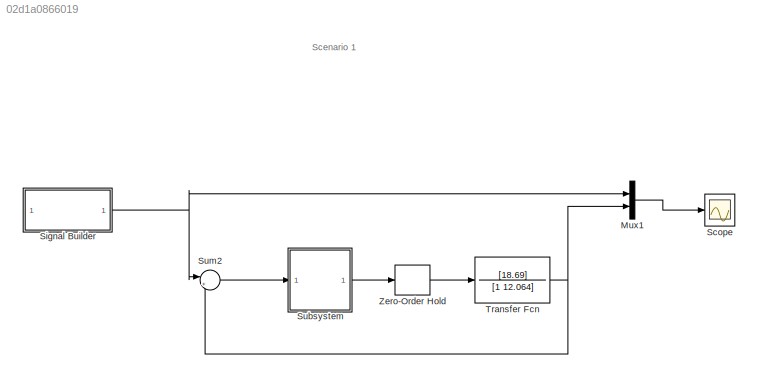
MODEL mdl_02d1a0866019
KIND model
CONFIG AbsTol = auto
CONFIG EnableMultiTasking = off
CONFIG FixedStep = auto
CONFIG MaxStep = auto
CONFIG MinStep = auto
CONFIG RelTol = 1e-3
CONFIG SampleTimeConstraint = Unconstrained
CONFIG SolverName = VariableStepAuto
CONFIG StartTime = 0.0
CONFIG StopTime = 30.0
BLOCK [Mux] Mux1
  DisplayOption = bar
  Inputs = 2
BLOCK [Scope] Scope
  Floating = off
  NumInputPorts = 1
  ScopeSpecificationString = Simulink.scopes.TimeScopeBlockCfg('CurrentConfiguration', extmgr.ConfigurationSet(extmgr.Configuration('Core','General UI',true),extmgr.Configuration('Core','Source UI',true),extmgr.Configuration('Sources','WiredSimulink',true),extmgr.Configuration('Visuals','Time Domain',true,'SerializedDisplays',{struct('MinYLimReal','-18.92428','MaxYLimReal','170.31848','YLabelReal','','MinYLimMag','0.00000','M...<+1771ch>
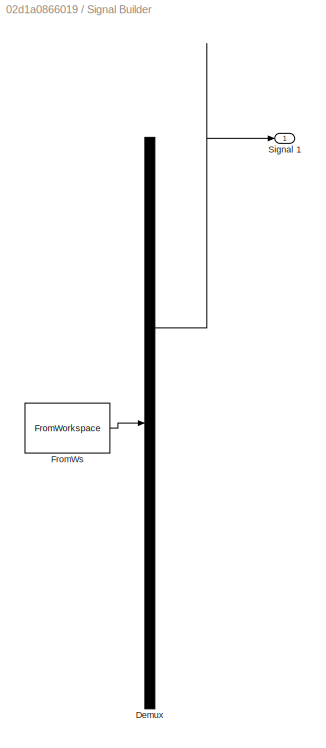
BLOCK [SubSystem] Signal Builder
  ClipboardFcn = sigbuilder_block('clipboard');
  CloseFcn = sigbuilder_block('close');
  ContinueFcn = sigbuilder_block('continue');
  CopyFcn = sigbuilder_block('copy');
  DeleteFcn = sigbuilder_block('delete');
  LoadFcn = sigbuilder_block('load');
  MaskHideContents = on
  ModelCloseFcn = sigbuilder_block('modelClose');
  NameChangeFcn = sigbuilder_block('namechange');
  OpenFcn = sigbuilder_block('open',[284.364 84.3636 550.545 362.909 ]);
  PauseFcn = sigbuilder_block('pause');
  PreSaveFcn = sigbuilder_block('preSave');
  StartFcn = sigbuilder_block('start');
  StopFcn = sigbuilder_block('stop');
  Tag = STV Subsys
BLOCK [Demux] Signal Builder/Demux
  DisplayOption = none
  Outputs = 1
  Tag = STV Demux
BLOCK [FromWorkspace] Signal Builder/FromWs
  Tag = STV FromWs
  VariableName = tuvar
BLOCK [Outport] Signal Builder/Signal 1
  Tag = STV Outport
  VectorParamsAs1DForOutWhenUnconnected = off
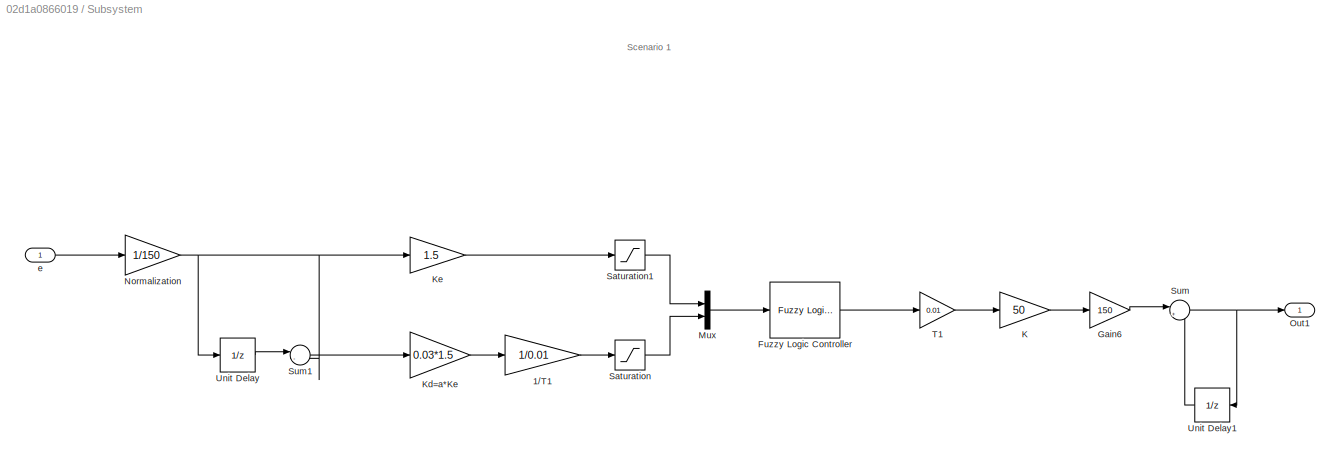
BLOCK [SubSystem] Subsystem
BLOCK [Gain] Subsystem/1//T1 
  Gain = 1/0.01
BLOCK [Reference] Subsystem/Fuzzy Logic Controller  REF=fuzblock/Fuzzy Logic   (lib defined in mdl_858b3b3e7478)
Controller
  SourceBlock = fuzblock/Fuzzy Logic \nController
  SourceType = Fuzzy Inference System
BLOCK [Gain] Subsystem/Gain6
  Gain = 150
BLOCK [Gain] Subsystem/K
  Gain = 50
BLOCK [Gain] Subsystem/Kd=a*Ke 
  Gain = 0.03*1.5
BLOCK [Gain] Subsystem/Ke
  Gain = 1.5
BLOCK [Mux] Subsystem/Mux
  DisplayOption = bar
  Inputs = 2
BLOCK [Gain] Subsystem/Normalization
  Gain = 1/150
BLOCK [Outport] Subsystem/Out1
  VectorParamsAs1DForOutWhenUnconnected = off
BLOCK [Saturate] Subsystem/Saturation
  LowerLimit = -1
  UpperLimit = 1
BLOCK [Saturate] Subsystem/Saturation1
  LowerLimit = -1
  UpperLimit = 1
BLOCK [Sum] Subsystem/Sum
  Inputs = |++
BLOCK [Sum] Subsystem/Sum1
  Inputs = |-+
BLOCK [Gain] Subsystem/T1
  Gain = 0.01
BLOCK [UnitDelay] Subsystem/Unit Delay
  HasFrameUpgradeWarning = on
  SampleTime = 0.01
BLOCK [UnitDelay] Subsystem/Unit Delay1
  HasFrameUpgradeWarning = on
  SampleTime = 0.01
BLOCK [Inport] Subsystem/e
BLOCK [Sum] Sum2
  Inputs = |+-
BLOCK [TransferFcn] Transfer Fcn
  Denominator = [1 12.064]
  Numerator = [18.69]
BLOCK [ZeroOrderHold] Zero-Order Hold
  SampleTime = 0.01
ANNOTATION (root): Scenario 1
ANNOTATION Subsystem: Scenario 1
LINE Mux1:1 -> Scope:1
NET Signal Builder:1 -> Mux1:1, Sum2:1
LINE Subsystem/1//T1 :1 -> Subsystem/Saturation:1
LINE Subsystem/Fuzzy Logic Controller:1 -> Subsystem/T1:1
LINE Subsystem/Gain6:1 -> Subsystem/Sum:1
LINE Subsystem/K:1 -> Subsystem/Gain6:1
LINE Subsystem/Kd=a*Ke :1 -> Subsystem/1//T1 :1
LINE Subsystem/Ke:1 -> Subsystem/Saturation1:1
LINE Subsystem/Mux:1 -> Subsystem/Fuzzy Logic Controller:1
NET Subsystem/Normalization:1 -> Subsystem/Ke:1, Subsystem/Sum1:2, Subsystem/Unit Delay:1
LINE Subsystem/Saturation1:1 -> Subsystem/Mux:1
LINE Subsystem/Saturation:1 -> Subsystem/Mux:2
LINE Subsystem/Sum1:1 -> Subsystem/Kd=a*Ke :1
NET Subsystem/Sum:1 -> Subsystem/Out1:1, Subsystem/Unit Delay1:1
LINE Subsystem/T1:1 -> Subsystem/K:1
LINE Subsystem/Unit Delay1:1 -> Subsystem/Sum:2
LINE Subsystem/Unit Delay:1 -> Subsystem/Sum1:1
LINE Subsystem/e:1 -> Subsystem/Normalization:1
LINE Subsystem:1 -> Zero-Order Hold:1
LINE Sum2:1 -> Subsystem:1
NET Transfer Fcn:1 -> Mux1:2, Sum2:2
LINE Zero-Order Hold:1 -> Transfer Fcn:1
note: NET lines group one-source signal fan-out (src -> all destinations, sorted); 1:1 wires keep LINE
